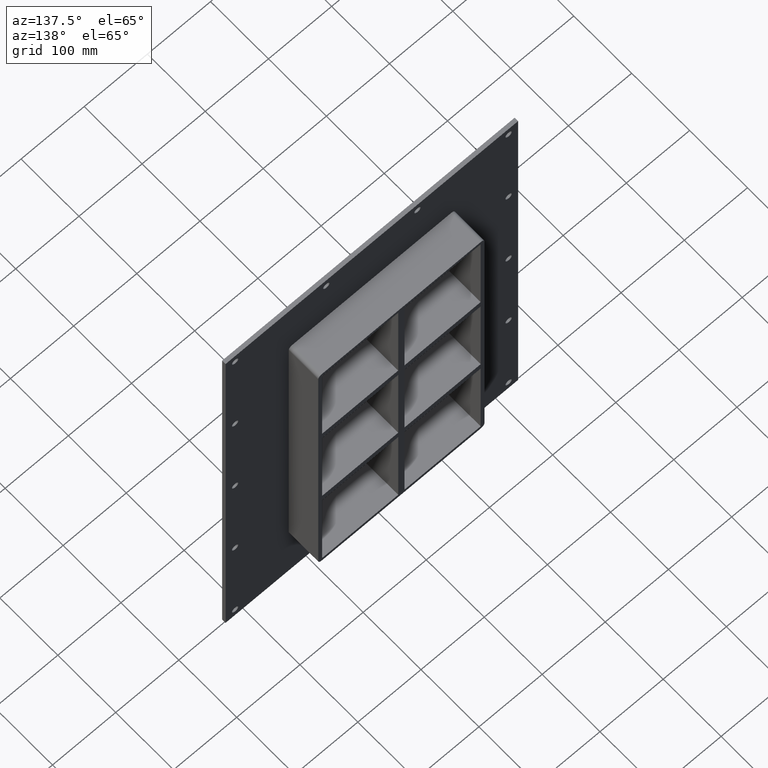
[diagram: clean part render]
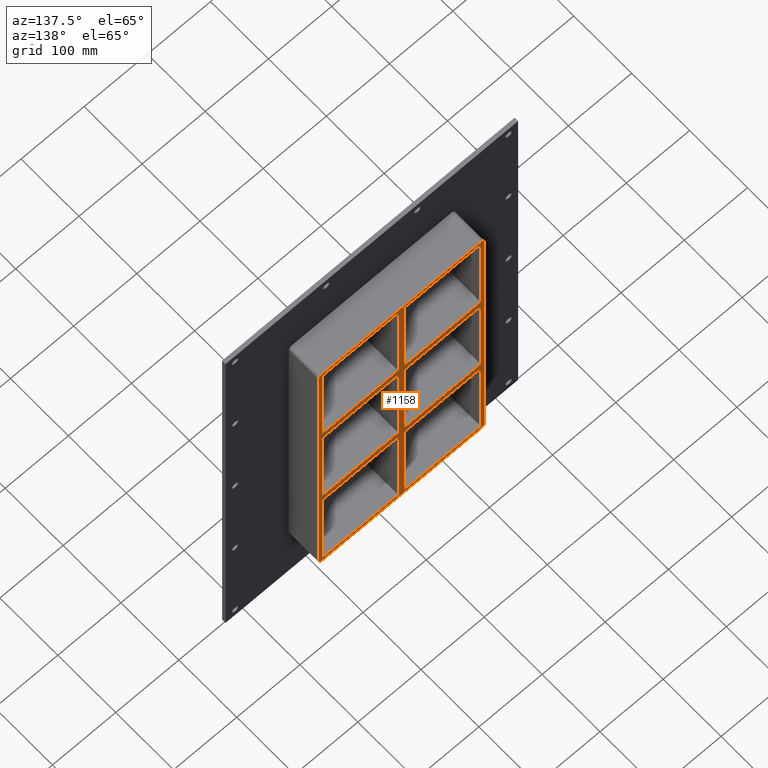
[diagram: same view with one face highlighted and labeled with its STEP entity id]
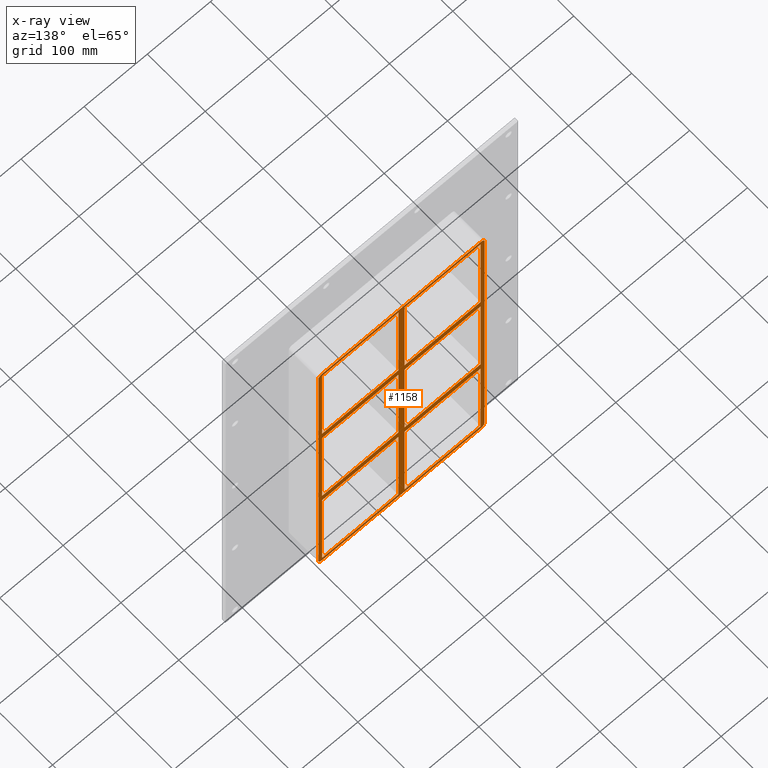
[diagram: x-ray of the same camera — body ghosted, the highlighted face saturated]
A machine part, auxiliary view. The second image highlights one B-rep face of the part: STEP entity #1158.
The next image is the same camera in x-ray: the body ghosted, the highlighted face saturated — about 0% of this face is hidden behind the body in this view.
In plain terms, the highlighted planar face has unit normal (0, 1, 0).
Its self-contained STEP definition (entity closure, byte-faithful):
#465=CARTESIAN_POINT('',(5.0,57.0,79.749999999990635));
#466=VERTEX_POINT('',#465);
#475=CARTESIAN_POINT('',(125.5000000000018,57.0,79.74999999999072));
#476=VERTEX_POINT('',#475);
#477=CARTESIAN_POINT('',(125.50000000000182,57.0,79.74999999999072));
#478=DIRECTION('',(-1.0,0.0,0.0));
#479=VECTOR('',#478,120.50000000000182);
#480=LINE('',#477,#479);
#481=EDGE_CURVE('',#476,#466,#480,.T.);
#507=CARTESIAN_POINT('',(5.0,57.0,91.750000000000085));
#508=VERTEX_POINT('',#507);
#523=CARTESIAN_POINT('',(125.49999999999991,57.0,91.750000000000085));
#524=VERTEX_POINT('',#523);
#531=CARTESIAN_POINT('',(5.000000000000014,57.0,91.750000000000085));
#532=DIRECTION('',(1.0,0.0,0.0));
#533=VECTOR('',#532,120.49999999999991);
#534=LINE('',#531,#533);
#535=EDGE_CURVE('',#508,#524,#534,.T.);
#545=CARTESIAN_POINT('',(-5.000000000001358,57.0,91.750000000000085));
#546=VERTEX_POINT('',#545);
#555=CARTESIAN_POINT('',(-125.4999999999997,57.0,91.750000000000085));
#556=VERTEX_POINT('',#555);
#557=CARTESIAN_POINT('',(-125.4999999999997,57.0,91.750000000000085));
#558=DIRECTION('',(1.0,0.0,0.0));
#559=VECTOR('',#558,120.49999999999835);
#560=LINE('',#557,#559);
#561=EDGE_CURVE('',#556,#546,#560,.T.);
#587=CARTESIAN_POINT('',(-5.000000000001355,57.0,79.749999999990678));
#588=VERTEX_POINT('',#587);
#603=CARTESIAN_POINT('',(-125.4999999999997,57.0,79.749999999990536));
#604=VERTEX_POINT('',#603);
#611=CARTESIAN_POINT('',(-5.000000000001364,57.0,79.749999999990621));
#612=DIRECTION('',(-1.0,0.0,0.0));
#613=VECTOR('',#612,120.49999999999832);
#614=LINE('',#611,#613);
#615=EDGE_CURVE('',#588,#604,#614,.T.);
#634=CARTESIAN_POINT('',(-125.4999999999997,57.0,-79.749999999999943));
#635=VERTEX_POINT('',#634);
#642=CARTESIAN_POINT('',(-125.5,57.0,79.74999999999055));
#643=DIRECTION('',(0.0,0.0,-1.0));
#644=VECTOR('',#643,159.49999999999051);
#645=LINE('',#642,#644);
#646=EDGE_CURVE('',#604,#635,#645,.T.);
#657=CARTESIAN_POINT('',(125.49999999999991,57.0,-79.749999999999943));
#658=VERTEX_POINT('',#657);
#659=CARTESIAN_POINT('',(125.5,57.0,-79.749999999999943));
#660=DIRECTION('',(0.0,0.0,1.0));
#661=VECTOR('',#660,159.49999999999068);
#662=LINE('',#659,#661);
#663=EDGE_CURVE('',#658,#476,#662,.T.);
#696=CARTESIAN_POINT('',(125.5,57.0,251.24999999999997));
#697=VERTEX_POINT('',#696);
#704=CARTESIAN_POINT('',(125.5,57.0,91.750000000000085));
#705=DIRECTION('',(0.0,0.0,1.0));
#706=VECTOR('',#705,159.49999999999989);
#707=LINE('',#704,#706);
#708=EDGE_CURVE('',#524,#697,#707,.T.);
#727=CARTESIAN_POINT('',(-5.000000000001386,57.0,251.24999999999997));
#728=VERTEX_POINT('',#727);
#735=CARTESIAN_POINT('',(-5.000000000001357,57.0,91.750000000000085));
#736=DIRECTION('',(0.0,0.0,1.0));
#737=VECTOR('',#736,159.49999999999989);
#738=LINE('',#735,#737);
#739=EDGE_CURVE('',#546,#728,#738,.T.);
#750=CARTESIAN_POINT('',(-5.000000000001332,57.0,-79.749999999999943));
#751=VERTEX_POINT('',#750);
#752=CARTESIAN_POINT('',(-5.000000000001327,57.0,-79.749999999999943));
#753=DIRECTION('',(0.0,0.0,1.0));
#754=VECTOR('',#753,159.49999999999059);
#755=LINE('',#752,#754);
#756=EDGE_CURVE('',#751,#588,#755,.T.);
#781=CARTESIAN_POINT('',(5.0,57.0,251.24999999999997));
#782=VERTEX_POINT('',#781);
#783=CARTESIAN_POINT('',(5.0,57.0,251.24999999999997));
#784=DIRECTION('',(0.0,0.0,-1.0));
#785=VECTOR('',#784,159.49999999999989);
#786=LINE('',#783,#785);
#787=EDGE_CURVE('',#782,#508,#786,.T.);
#811=CARTESIAN_POINT('',(5.0,57.0,-91.750000000009379));
#812=VERTEX_POINT('',#811);
#821=CARTESIAN_POINT('',(125.5000000000018,57.0,-91.750000000009294));
#822=VERTEX_POINT('',#821);
#823=CARTESIAN_POINT('',(125.50000000000182,57.0,-91.750000000009294));
#824=DIRECTION('',(-1.0,0.0,0.0));
#825=VECTOR('',#824,120.50000000000182);
#826=LINE('',#823,#825);
#827=EDGE_CURVE('',#822,#812,#826,.T.);
#853=CARTESIAN_POINT('',(-5.000000000001332,57.0,-91.750000000009408));
#854=VERTEX_POINT('',#853);
#869=CARTESIAN_POINT('',(-125.4999999999997,57.0,-91.750000000009493));
#870=VERTEX_POINT('',#869);
#877=CARTESIAN_POINT('',(-5.000000000001336,57.0,-91.750000000009393));
#878=DIRECTION('',(-1.0,0.0,0.0));
#879=VECTOR('',#878,120.49999999999835);
#880=LINE('',#877,#879);
#881=EDGE_CURVE('',#854,#870,#880,.T.);
#893=CARTESIAN_POINT('',(5.0,57.0,-79.749999999999943));
#894=VERTEX_POINT('',#893);
#908=CARTESIAN_POINT('',(5.000000000000014,57.0,-79.749999999999943));
#909=DIRECTION('',(1.0,0.0,0.0));
#910=VECTOR('',#909,120.49999999999991);
#911=LINE('',#908,#910);
#912=EDGE_CURVE('',#894,#658,#911,.T.);
#923=CARTESIAN_POINT('',(-125.4999999999997,57.0,-79.749999999999943));
#924=DIRECTION('',(1.0,0.0,0.0));
#925=VECTOR('',#924,120.49999999999838);
#926=LINE('',#923,#925);
#927=EDGE_CURVE('',#635,#751,#926,.T.);
#945=CARTESIAN_POINT('',(-125.5,57.0,251.24999999999997));
#946=VERTEX_POINT('',#945);
#947=CARTESIAN_POINT('',(-125.5,57.0,251.25));
#948=DIRECTION('',(0.0,0.0,-1.0));
#949=VECTOR('',#948,159.49999999999989);
#950=LINE('',#947,#949);
#951=EDGE_CURVE('',#946,#556,#950,.T.);
#976=CARTESIAN_POINT('',(125.5,57.0,-251.25000000000003));
#977=VERTEX_POINT('',#976);
#978=CARTESIAN_POINT('',(125.5,57.0,-251.25));
#979=DIRECTION('',(0.0,0.0,1.0));
#980=VECTOR('',#979,159.49999999999073);
#981=LINE('',#978,#980);
#982=EDGE_CURVE('',#977,#822,#981,.T.);
#1001=CARTESIAN_POINT('',(0.0,57.0,0.0));
#1002=DIRECTION('',(0.0,1.0,0.0));
#1003=DIRECTION('',(0.0,0.0,1.0));
#1004=AXIS2_PLACEMENT_3D('',#1001,#1002,#1003);
#1005=PLANE('',#1004);
#1006=CARTESIAN_POINT('',(125.5,57.0,-257.25));
#1007=VERTEX_POINT('',#1006);
#1008=CARTESIAN_POINT('',(131.5,57.0,-251.25));
#1009=VERTEX_POINT('',#1008);
#1010=CARTESIAN_POINT('',(125.5,57.0,-251.25));
#1011=DIRECTION('',(0.0,-1.0,0.0));
#1012=DIRECTION('',(0.707106781186548,0.0,-0.707106781186548));
#1013=AXIS2_PLACEMENT_3D('',#1010,#1011,#1012);
#1014=CIRCLE('',#1013,6.000000000000002);
#1015=EDGE_CURVE('',#1007,#1009,#1014,.T.);
#1016=ORIENTED_EDGE('',*,*,#1015,.F.);
#1017=CARTESIAN_POINT('',(-125.50000000000003,57.0,-257.25));
#1018=VERTEX_POINT('',#1017);
#1019=CARTESIAN_POINT('',(125.5,57.0,-257.25));
#1020=DIRECTION('',(-1.0,0.0,0.0));
#1021=VECTOR('',#1020,251.0);
#1022=LINE('',#1019,#1021);
#1023=EDGE_CURVE('',#1007,#1018,#1022,.T.);
#1024=ORIENTED_EDGE('',*,*,#1023,.T.);
#1025=CARTESIAN_POINT('',(-131.5,57.0,-251.25));
#1026=VERTEX_POINT('',#1025);
#1027=CARTESIAN_POINT('',(-125.5,57.0,-251.25));
#1028=DIRECTION('',(0.0,-1.0,0.0));
#1029=DIRECTION('',(-0.707106781186548,0.0,-0.707106781186548));
#1030=AXIS2_PLACEMENT_3D('',#1027,#1028,#1029);
#1031=CIRCLE('',#1030,6.000000000000002);
#1032=EDGE_CURVE('',#1026,#1018,#1031,.T.);
#1033=ORIENTED_EDGE('',*,*,#1032,.F.);
#1034=CARTESIAN_POINT('',(-131.5,57.0,251.25));
#1035=VERTEX_POINT('',#1034);
#1036=CARTESIAN_POINT('',(-131.5,57.0,-251.25));
#1037=DIRECTION('',(0.0,0.0,1.0));
#1038=VECTOR('',#1037,502.5);
#1039=LINE('',#1036,#1038);
#1040=EDGE_CURVE('',#1026,#1035,#1039,.T.);
#1041=ORIENTED_EDGE('',*,*,#1040,.T.);
#1042=CARTESIAN_POINT('',(-125.5,57.0,257.25));
#1043=VERTEX_POINT('',#1042);
#1044=CARTESIAN_POINT('',(-125.5,57.0,251.25));
#1045=DIRECTION('',(0.0,-1.0,0.0));
#1046=DIRECTION('',(-0.707106781186548,0.0,0.707106781186548));
#1047=AXIS2_PLACEMENT_3D('',#1044,#1045,#1046);
#1048=CIRCLE('',#1047,6.000000000000002);
#1049=EDGE_CURVE('',#1043,#1035,#1048,.T.);
#1050=ORIENTED_EDGE('',*,*,#1049,.F.);
#1051=CARTESIAN_POINT('',(125.50000000000003,57.0,257.25));
#1052=VERTEX_POINT('',#1051);
#1053=CARTESIAN_POINT('',(-125.5,57.0,257.25));
#1054=DIRECTION('',(1.0,0.0,0.0));
#1055=VECTOR('',#1054,251.0);
#1056=LINE('',#1053,#1055);
#1057=EDGE_CURVE('',#1043,#1052,#1056,.T.);
#1058=ORIENTED_EDGE('',*,*,#1057,.T.);
#1059=CARTESIAN_POINT('',(131.5,57.0,251.25));
#1060=VERTEX_POINT('',#1059);
#1061=CARTESIAN_POINT('',(125.5,57.0,251.25));
#1062=DIRECTION('',(0.0,-1.0,0.0));
#1063=DIRECTION('',(0.707106781186548,0.0,0.707106781186548));
#1064=AXIS2_PLACEMENT_3D('',#1061,#1062,#1063);
#1065=CIRCLE('',#1064,6.000000000000002);
#1066=EDGE_CURVE('',#1060,#1052,#1065,.T.);
#1067=ORIENTED_EDGE('',*,*,#1066,.F.);
#1068=CARTESIAN_POINT('',(131.5,57.0,251.25));
#1069=DIRECTION('',(0.0,0.0,-1.0));
#1070=VECTOR('',#1069,502.5);
#1071=LINE('',#1068,#1070);
#1072=EDGE_CURVE('',#1060,#1009,#1071,.T.);
#1073=ORIENTED_EDGE('',*,*,#1072,.T.);
#1074=EDGE_LOOP('',(#1016,#1024,#1033,#1041,#1050,#1058,#1067,#1073));
#1075=FACE_OUTER_BOUND('',#1074,.T.);
#1076=ORIENTED_EDGE('',*,*,#646,.T.);
#1077=ORIENTED_EDGE('',*,*,#927,.T.);
#1078=ORIENTED_EDGE('',*,*,#756,.T.);
#1079=ORIENTED_EDGE('',*,*,#615,.T.);
#1080=EDGE_LOOP('',(#1076,#1077,#1078,#1079));
#1081=FACE_BOUND('',#1080,.T.);
#1082=ORIENTED_EDGE('',*,*,#708,.T.);
#1083=CARTESIAN_POINT('',(125.50000000000003,57.0,251.25));
#1084=DIRECTION('',(-1.0,0.0,0.0));
#1085=VECTOR('',#1084,120.50000000000003);
#1086=LINE('',#1083,#1085);
#1087=EDGE_CURVE('',#697,#782,#1086,.T.);
#1088=ORIENTED_EDGE('',*,*,#1087,.T.);
#1089=ORIENTED_EDGE('',*,*,#787,.T.);
#1090=ORIENTED_EDGE('',*,*,#535,.T.);
#1091=EDGE_LOOP('',(#1082,#1088,#1089,#1090));
#1092=FACE_BOUND('',#1091,.T.);
#1093=ORIENTED_EDGE('',*,*,#481,.T.);
#1094=CARTESIAN_POINT('',(5.0,57.0,79.749999999990649));
#1095=DIRECTION('',(0.0,0.0,-1.0));
#1096=VECTOR('',#1095,159.49999999999062);
#1097=LINE('',#1094,#1096);
#1098=EDGE_CURVE('',#466,#894,#1097,.T.);
#1099=ORIENTED_EDGE('',*,*,#1098,.T.);
#1100=ORIENTED_EDGE('',*,*,#912,.T.);
#1101=ORIENTED_EDGE('',*,*,#663,.T.);
#1102=EDGE_LOOP('',(#1093,#1099,#1100,#1101));
#1103=FACE_BOUND('',#1102,.T.);
#1104=ORIENTED_EDGE('',*,*,#561,.T.);
#1105=ORIENTED_EDGE('',*,*,#739,.T.);
#1106=CARTESIAN_POINT('',(-5.000000000001379,57.0,251.25));
#1107=DIRECTION('',(-1.0,0.0,0.0));
#1108=VECTOR('',#1107,120.49999999999862);
#1109=LINE('',#1106,#1108);
#1110=EDGE_CURVE('',#728,#946,#1109,.T.);
#1111=ORIENTED_EDGE('',*,*,#1110,.T.);
#1112=ORIENTED_EDGE('',*,*,#951,.T.);
#1113=EDGE_LOOP('',(#1104,#1105,#1111,#1112));
#1114=FACE_BOUND('',#1113,.T.);
#1115=CARTESIAN_POINT('',(-125.5,57.0,-251.25000000000003));
#1116=VERTEX_POINT('',#1115);
#1117=CARTESIAN_POINT('',(-125.5,57.0,-91.750000000009493));
#1118=DIRECTION('',(0.0,0.0,-1.0));
#1119=VECTOR('',#1118,159.49999999999054);
#1120=LINE('',#1117,#1119);
#1121=EDGE_CURVE('',#870,#1116,#1120,.T.);
#1122=ORIENTED_EDGE('',*,*,#1121,.T.);
#1123=CARTESIAN_POINT('',(-5.000000000001297,57.0,-251.25000000000003));
#1124=VERTEX_POINT('',#1123);
#1125=CARTESIAN_POINT('',(-125.50000000000003,57.0,-251.25000000000003));
#1126=DIRECTION('',(1.0,0.0,0.0));
#1127=VECTOR('',#1126,120.49999999999872);
#1128=LINE('',#1125,#1127);
#1129=EDGE_CURVE('',#1116,#1124,#1128,.T.);
#1130=ORIENTED_EDGE('',*,*,#1129,.T.);
#1131=CARTESIAN_POINT('',(-5.000000000001297,57.0,-251.25000000000003));
#1132=DIRECTION('',(0.0,0.0,1.0));
#1133=VECTOR('',#1132,159.49999999999062);
#1134=LINE('',#1131,#1133);
#1135=EDGE_CURVE('',#1124,#854,#1134,.T.);
#1136=ORIENTED_EDGE('',*,*,#1135,.T.);
#1137=ORIENTED_EDGE('',*,*,#881,.T.);
#1138=EDGE_LOOP('',(#1122,#1130,#1136,#1137));
#1139=FACE_BOUND('',#1138,.T.);
#1140=ORIENTED_EDGE('',*,*,#827,.T.);
#1141=CARTESIAN_POINT('',(5.0,57.0,-251.24999999998425));
#1142=VERTEX_POINT('',#1141);
#1143=CARTESIAN_POINT('',(5.0,57.0,-91.750000000009351));
#1144=DIRECTION('',(0.0,0.0,-1.0));
#1145=VECTOR('',#1144,159.49999999997488);
#1146=LINE('',#1143,#1145);
#1147=EDGE_CURVE('',#812,#1142,#1146,.T.);
#1148=ORIENTED_EDGE('',*,*,#1147,.T.);
#1149=CARTESIAN_POINT('',(5.0,57.0,-251.25000000000003));
#1150=DIRECTION('',(1.0,0.0,0.0));
#1151=VECTOR('',#1150,120.5);
#1152=LINE('',#1149,#1151);
#1153=EDGE_CURVE('',#1142,#977,#1152,.T.);
#1154=ORIENTED_EDGE('',*,*,#1153,.T.);
#1155=ORIENTED_EDGE('',*,*,#982,.T.);
#1156=EDGE_LOOP('',(#1140,#1148,#1154,#1155));
#1157=FACE_BOUND('',#1156,.T.);
#1158=ADVANCED_FACE('',(#1075,#1081,#1092,#1103,#1114,#1139,#1157),#1005,.T.);